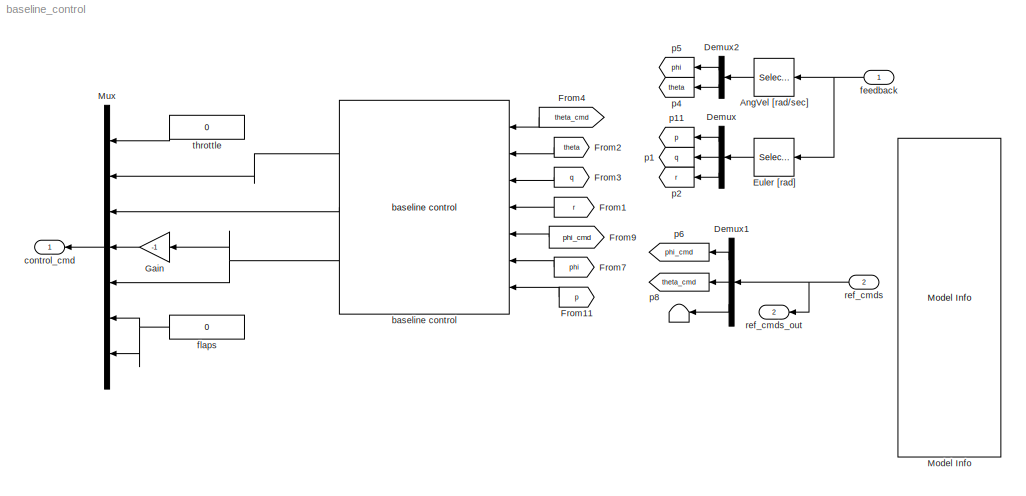
MODEL baseline_control
KIND model
BLOCK [Terminator]  
  SID = 3
BLOCK [Selector] AngVel [rad//sec]
  IndexOptions = Index vector (dialog)
  Indices = [1:2]
  InputPortWidth = 19
  OutputSizes = 1
  Ports = [1, 1]
  SID = 37
BLOCK [Demux] Demux
  DisplayOption = bar
  Outputs = 3
  Ports = [1, 3]
  SID = 38
BLOCK [Demux] Demux1
  DisplayOption = bar
  Outputs = [1 1 10]
  Ports = [1, 3]
  SID = 39
BLOCK [Demux] Demux2
  DisplayOption = bar
  Outputs = 2
  Ports = [1, 2]
  SID = 40
BLOCK [Selector] Euler [rad]
  IndexOptions = Index vector (dialog)
  Indices = [4:6]
  InputPortWidth = 19
  OutputSizes = 1
  Ports = [1, 1]
  SID = 42
BLOCK [From] From1
  GotoTag = r
  SID = 43
BLOCK [From] From11
  GotoTag = p
  SID = 45
BLOCK [From] From2
  GotoTag = theta
  SID = 46
BLOCK [From] From3
  GotoTag = q
  SID = 47
BLOCK [From] From4
  GotoTag = theta_cmd
  SID = 110
BLOCK [From] From7
  GotoTag = phi
  SID = 51
BLOCK [From] From9
  GotoTag = phi_cmd
  SID = 53
BLOCK [Gain] Gain
  Gain = -1
  OutDataTypeMode = Inherit via internal rule
  OutDataTypeStr = Inherit: Inherit via internal rule
  ParamDataTypeStr = Inherit: Inherit via internal rule
  ParameterDataTypeMode = Inherit via internal rule
  SID = 54
  SaturateOnIntegerOverflow = off
BLOCK [Reference] Model Info  REF=simulink/Model-Wide\nUtilities/Model Info
  BlockCM = None
  DisplayStringWithTags = Ref Cmd Port Info\n\n1. phi_cmd\n2. theta_cmd\n3. psi_cmd\n4. p_cmd\n5. q_cmd\n6. r_cmd\n7. V_s_cmd\n8. h_cmd\n9. gndtrk_cmd\n10. aoa_cmd\n11. aos_cmd\n12. gamma_cmd\n13. signal_0\n14. signal_1\n15. signal_2\n16. signal_3\n17. signal_4\n18. signal_5\n19. signal_6\n20. signal_7\n21. signal_8\n22. signal_9
  Frame = on
  FunctionWithSeparateData = off
  HorizontalTextAlignment = Center
  InitialBlockCM = None
  LeftAlignmentValue = 0.5
  MaskDisplayString = Ref Cmd Port Info\\n\\n1. phi_cmd\\n2. theta_cmd\\n3. psi_cmd\\n4. p_cmd\\n5. q_cmd\\n6. r_cmd\\n7. V_s_cmd\\n8. h_cmd\\n9. gndtrk_cmd\\n10. aoa_cmd\\n11. aos_cmd\\n12. gamma_cmd\\n13. signal_0\\n14. signal_1\\n15. signal_2\\n16. signal_3\\n17. signal_4\\n18. signal_5\\n19. signal_6\\n20. signal_7\\n21. signal_8\\n22. signal_9
  Ports = []
  RTWMemSecDataConstants = Inherit from model
  RTWMemSecDataInternal = Inherit from model
  RTWMemSecDataParameters = Inherit from model
  RTWMemSecFuncExecute = Inherit from model
  RTWMemSecFuncInitTerm = Inherit from model
  SID = 55
  ShowPortLabels = FromPortIcon
  SourceBlock = simulink/Model-Wide\nUtilities/Model Info
  SourceBlockDiagram = baseline_control
  SourceType = CMBlock
  SystemSampleTime = -1
  TagMaxNumber = 20
BLOCK [Mux] Mux
  DisplayOption = bar
  Inputs = 7
  Ports = [7, 1]
  SID = 56
BLOCK [Reference] baseline control  REF=Controller_Lib/baseline control
  FunctionWithSeparateData = off
  Ports = [7, 3]
  RTWMemSecDataConstants = Inherit from model
  RTWMemSecDataInternal = Inherit from model
  RTWMemSecDataParameters = Inherit from model
  RTWMemSecFuncExecute = Inherit from model
  RTWMemSecFuncInitTerm = Inherit from model
  SID = 335
  ShowPortLabels = FromPortIcon
  SourceBlock = Controller_Lib/baseline control
  SourceType = Baseline Controller
  SystemSampleTime = -1
  pitch = pitch_gains
  roll = roll_gains
  yaw_den = yaw_damper_den
  yaw_num = yaw_damper_num
BLOCK [Outport] control_cmd
  IconDisplay = Port number
  OutDataType = fixdt(1, 16)
  OutScaling = 2^0
  SID = 104
BLOCK [Inport] feedback
  IconDisplay = Port number
  OutDataType = fixdt(1, 16)
  OutScaling = 2^0
  SID = 1
BLOCK [Constant] flaps
  SID = 91
  Value = 0
BLOCK [Goto] p1
  GotoTag = q
  SID = 93
  TagVisibility = local
BLOCK [Goto] p11
  GotoTag = p
  SID = 95
  TagVisibility = local
BLOCK [Goto] p2
  GotoTag = r
  SID = 97
  TagVisibility = local
BLOCK [Goto] p4
  GotoTag = theta
  SID = 99
  TagVisibility = local
BLOCK [Goto] p5
  GotoTag = phi
  SID = 100
  TagVisibility = local
BLOCK [Goto] p6
  GotoTag = phi_cmd
  SID = 101
  TagVisibility = local
BLOCK [Goto] p8
  GotoTag = theta_cmd
  SID = 107
  TagVisibility = local
BLOCK [Inport] ref_cmds
  IconDisplay = Port number
  OutDataType = fixdt(1, 16)
  OutScaling = 2^0
  Port = 2
  SID = 2
BLOCK [Outport] ref_cmds_out
  IconDisplay = Port number
  OutDataType = fixdt(1, 16)
  OutScaling = 2^0
  Port = 2
  SID = 105
BLOCK [Constant] throttle
  SID = 106
  Value = 0
LINE AngVel [rad//sec]:1 -> Demux2:1
LINE Demux1:1 -> p6:1
LINE Demux1:2 -> p8:1
LINE Demux1:3 ->  :1
LINE Demux2:1 -> p5:1
LINE Demux2:2 -> p4:1
LINE Demux:1 -> p11:1
LINE Demux:2 -> p1:1
LINE Demux:3 -> p2:1
LINE Euler [rad]:1 -> Demux:1
LINE From11:1 -> baseline control:7
LINE From1:1 -> baseline control:4
LINE From2:1 -> baseline control:2
LINE From3:1 -> baseline control:3
LINE From4:1 -> baseline control:1
LINE From7:1 -> baseline control:6
LINE From9:1 -> baseline control:5
LINE Gain:1 -> Mux:4
LINE Mux:1 -> control_cmd:1
LINE baseline control:1 -> Mux:2
LINE baseline control:2 -> Mux:3
NET baseline control:3 -> Gain:1, Mux:5
NET feedback:1 -> AngVel [rad//sec]:1, Euler [rad]:1
NET flaps:1 -> Mux:6, Mux:7
NET ref_cmds:1 -> Demux1:1, ref_cmds_out:1
LINE throttle:1 -> Mux:1
note: NET lines group one-source signal fan-out (src -> all destinations, sorted); 1:1 wires keep LINE
